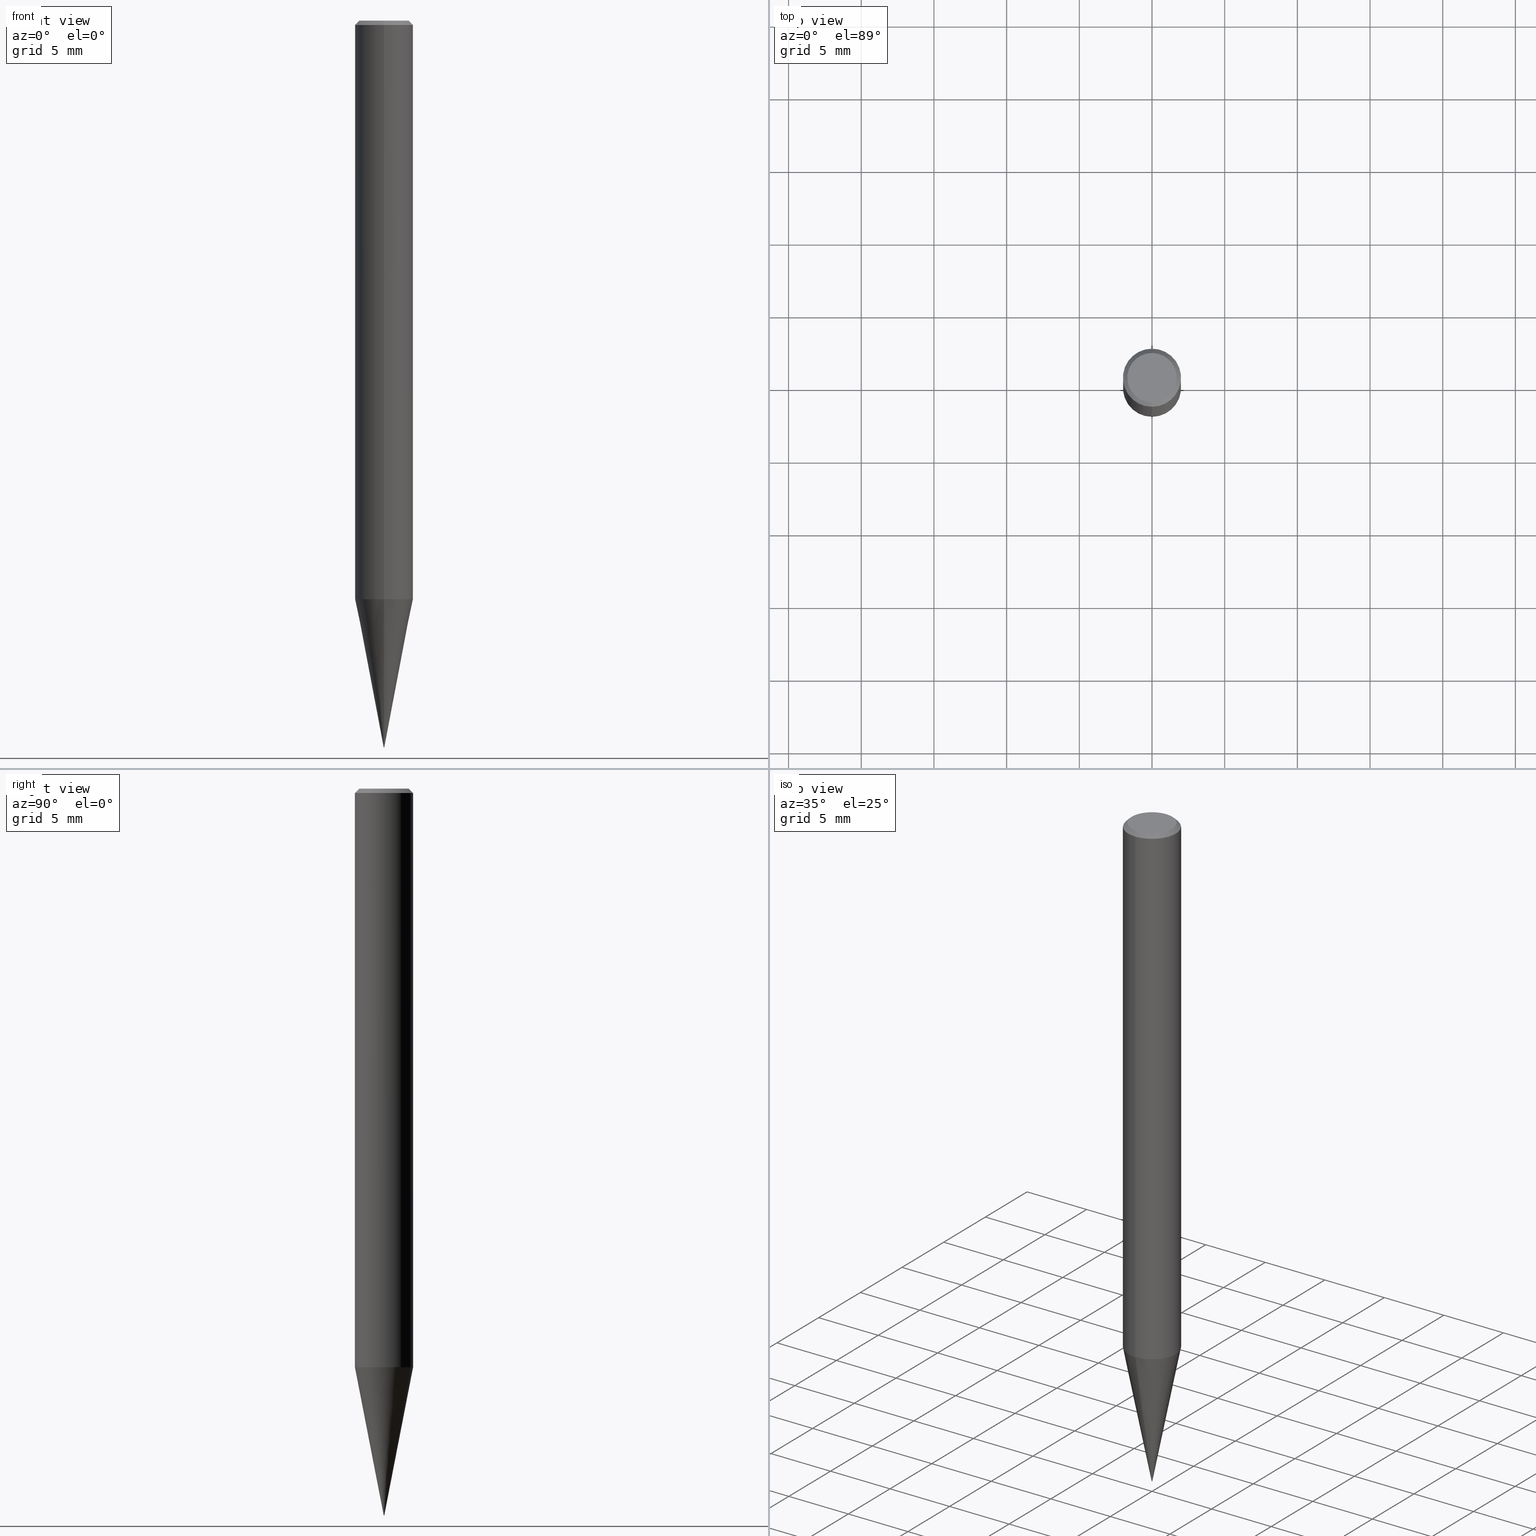
[diagram: canonical four-view strip — front | top / right | iso, engineering-drawing reading convention]
A machine part, canonical four-view strip (front | top / right | iso — engineering-drawing reading convention). The complete STEP part file that produces these views, byte-faithful:
ISO-10303-21;
HEADER;
FILE_DESCRIPTION(('no description'),'unknown implementation level');
FILE_NAME('HSB20006-0006-Huellk.stp','  ',('CIMSOURCE GmbH'),('CADClick - KiM GmbH - www.kimweb.de'),'unknown preprocess','ACIS','unknown authorization');
FILE_SCHEMA(('automotive_design'));
ENDSEC;
DATA;
#1=MECHANICAL_DESIGN_GEOMETRIC_PRESENTATION_REPRESENTATION(' ',(#14,#15,#16,#17,#18,#19,#20,#21,#22,#23,#24,#25,#26,#27,#28,#29,#30,#31,#32,#33,#34,#35,#36,#37,#38,#39,#40,#41,#42,#43,#44,#45,#46,#47,#48,#49,#50,#51,#52,#53,#54,#55,#56,#57,#58,#59,#60,#61,#62,#63,#64,#65,#66),#10);
#2=PRODUCT_DEFINITION_CONTEXT('',#67,'design');
#3=APPLICATION_PROTOCOL_DEFINITION('INTERNATIONAL STANDARD','automotive_design',1994,#67);
#4=PRODUCT_CATEGORY_RELATIONSHIP('NONE','NONE',#68,#69);
#5=SHAPE_DEFINITION_REPRESENTATION(#70,#71);
#6=PRODUCT_DEFINITION_CONTEXT('',#72,'design');
#7=APPLICATION_PROTOCOL_DEFINITION('INTERNATIONAL STANDARD','automotive_design',1994,#72);
#8=PRODUCT_CATEGORY_RELATIONSHIP('NONE','NONE',#73,#74);
#9=SHAPE_DEFINITION_REPRESENTATION(#75,#76);
#10= (GEOMETRIC_REPRESENTATION_CONTEXT(3)GLOBAL_UNCERTAINTY_ASSIGNED_CONTEXT((#79))GLOBAL_UNIT_ASSIGNED_CONTEXT((#81,#82,#83))REPRESENTATION_CONTEXT('NONE','WORKSPACE'));
#14=STYLED_ITEM('',(#85),#86);
#15=STYLED_ITEM('',(#87),#88);
#16=STYLED_ITEM('',(#89),#90);
#17=STYLED_ITEM('',(#91),#92);
#18=STYLED_ITEM('',(#93),#94);
#19=STYLED_ITEM('',(#95),#96);
#20=STYLED_ITEM('',(#97),#98);
#21=STYLED_ITEM('',(#99),#100);
#22=STYLED_ITEM('',(#101),#102);
#23=STYLED_ITEM('',(#103),#104);
#24=STYLED_ITEM('',(#105),#106);
#25=STYLED_ITEM('',(#107),#108);
#26=STYLED_ITEM('',(#109),#110);
#27=STYLED_ITEM('',(#111),#112);
#28=STYLED_ITEM('',(#113),#114);
#29=STYLED_ITEM('',(#115),#116);
#30=STYLED_ITEM('',(#117),#118);
#31=STYLED_ITEM('',(#119),#120);
#32=STYLED_ITEM('',(#121),#122);
#33=STYLED_ITEM('',(#123),#124);
#34=STYLED_ITEM('',(#125),#126);
#35=STYLED_ITEM('',(#127),#128);
#36=STYLED_ITEM('',(#129),#130);
#37=STYLED_ITEM('',(#131),#132);
#38=STYLED_ITEM('',(#133),#134);
#39=STYLED_ITEM('',(#135),#136);
#40=STYLED_ITEM('',(#137),#138);
#41=STYLED_ITEM('',(#139),#140);
#42=STYLED_ITEM('',(#141),#142);
#43=STYLED_ITEM('',(#143),#144);
#44=STYLED_ITEM('',(#145),#146);
#45=STYLED_ITEM('',(#147),#148);
#46=STYLED_ITEM('',(#149),#150);
#47=STYLED_ITEM('',(#151),#152);
#48=STYLED_ITEM('',(#153),#154);
#49=STYLED_ITEM('',(#155),#156);
#50=STYLED_ITEM('',(#157),#158);
#51=STYLED_ITEM('',(#159),#160);
#52=STYLED_ITEM('',(#161),#162);
#53=STYLED_ITEM('',(#163),#164);
#54=STYLED_ITEM('',(#165),#166);
#55=STYLED_ITEM('',(#167),#168);
#56=STYLED_ITEM('',(#169),#170);
#57=STYLED_ITEM('',(#171),#172);
#58=STYLED_ITEM('',(#173),#174);
#59=STYLED_ITEM('',(#175),#176);
#60=STYLED_ITEM('',(#177),#178);
#61=STYLED_ITEM('',(#179),#180);
#62=STYLED_ITEM('',(#181),#182);
#63=STYLED_ITEM('',(#183),#184);
#64=STYLED_ITEM('',(#185),#186);
#65=STYLED_ITEM('',(#187),#188);
#66=STYLED_ITEM('',(#189),#190);
#67=APPLICATION_CONTEXT(' ');
#68=PRODUCT_CATEGORY('part','NONE');
#69=PRODUCT_RELATED_PRODUCT_CATEGORY('detail',' ',(#191));
#70=PRODUCT_DEFINITION_SHAPE('NONE','NONE',#192);
#71=ADVANCED_BREP_SHAPE_REPRESENTATION('1',(#160,#193),#10);
#72=APPLICATION_CONTEXT(' ');
#73=PRODUCT_CATEGORY('part','NONE');
#74=PRODUCT_RELATED_PRODUCT_CATEGORY('detail',' ',(#194));
#75=PRODUCT_DEFINITION_SHAPE('NONE','NONE',#195);
#76=ADVANCED_BREP_SHAPE_REPRESENTATION('2',(#178,#196),#10);
#79=UNCERTAINTY_MEASURE_WITH_UNIT(LENGTH_MEASURE(1.0E-006),#81,'','');
#81= (CONVERSION_BASED_UNIT('MILLIMETRE',#199)LENGTH_UNIT()NAMED_UNIT(#202));
#82= (NAMED_UNIT(#204)PLANE_ANGLE_UNIT()SI_UNIT($,.RADIAN.));
#83= (NAMED_UNIT(#204)SOLID_ANGLE_UNIT()SI_UNIT($,.STERADIAN.));
#85=PRESENTATION_STYLE_ASSIGNMENT((#210));
#86=EDGE_CURVE('',#154,#134,#211,.T.);
#87=PRESENTATION_STYLE_ASSIGNMENT((#212));
#88=EDGE_CURVE('',#114,#108,#213,.T.);
#89=PRESENTATION_STYLE_ASSIGNMENT((#214));
#90=EDGE_CURVE('',#154,#108,#215,.T.);
#91=PRESENTATION_STYLE_ASSIGNMENT((#216));
#92=EDGE_CURVE('',#172,#120,#217,.T.);
#93=PRESENTATION_STYLE_ASSIGNMENT((#218));
#94=EDGE_CURVE('',#180,#170,#219,.T.);
#95=PRESENTATION_STYLE_ASSIGNMENT((#220));
#96=ADVANCED_FACE('',(#221,#222),#223,.T.);
#97=PRESENTATION_STYLE_ASSIGNMENT((#224));
#98=ADVANCED_FACE('',(#225),#226,.T.);
#99=PRESENTATION_STYLE_ASSIGNMENT((#227));
#100=EDGE_CURVE('',#108,#176,#228,.T.);
#101=PRESENTATION_STYLE_ASSIGNMENT((#229));
#102=EDGE_CURVE('',#110,#146,#230,.T.);
#103=PRESENTATION_STYLE_ASSIGNMENT((#231));
#104=VERTEX_POINT('',#232);
#105=PRESENTATION_STYLE_ASSIGNMENT((#233));
#106=EDGE_CURVE('',#138,#114,#234,.T.);
#107=PRESENTATION_STYLE_ASSIGNMENT((#235));
#108=VERTEX_POINT('',#236);
#109=PRESENTATION_STYLE_ASSIGNMENT((#237));
#110=VERTEX_POINT('',#238);
#111=PRESENTATION_STYLE_ASSIGNMENT((#239));
#112=EDGE_CURVE('',#146,#110,#240,.T.);
#113=PRESENTATION_STYLE_ASSIGNMENT((#241));
#114=VERTEX_POINT('',#242);
#115=PRESENTATION_STYLE_ASSIGNMENT((#243));
#116=EDGE_CURVE('',#134,#154,#244,.T.);
#117=PRESENTATION_STYLE_ASSIGNMENT((#245));
#118=EDGE_CURVE('',#138,#176,#246,.T.);
#119=PRESENTATION_STYLE_ASSIGNMENT((#247));
#120=VERTEX_POINT('',#248);
#121=PRESENTATION_STYLE_ASSIGNMENT((#249));
#122=ADVANCED_FACE('',(#250),#251,.T.);
#123=PRESENTATION_STYLE_ASSIGNMENT((#252));
#124=EDGE_CURVE('',#120,#166,#253,.T.);
#125=PRESENTATION_STYLE_ASSIGNMENT((#254));
#126=ADVANCED_FACE('',(#255),#256,.T.);
#127=PRESENTATION_STYLE_ASSIGNMENT((#257));
#128=EDGE_CURVE('',#110,#146,#258,.T.);
#129=PRESENTATION_STYLE_ASSIGNMENT((#259));
#130=ADVANCED_FACE('',(#260),#261,.T.);
#131=PRESENTATION_STYLE_ASSIGNMENT((#262));
#132=ADVANCED_FACE('',(#263),#264,.T.);
#133=PRESENTATION_STYLE_ASSIGNMENT((#265));
#134=VERTEX_POINT('',#266);
#135=PRESENTATION_STYLE_ASSIGNMENT((#267));
#136=EDGE_CURVE('',#180,#146,#268,.T.);
#137=PRESENTATION_STYLE_ASSIGNMENT((#269));
#138=VERTEX_POINT('',#270);
#139=PRESENTATION_STYLE_ASSIGNMENT((#271));
#140=EDGE_CURVE('',#110,#170,#272,.T.);
#141=PRESENTATION_STYLE_ASSIGNMENT((#273));
#142=ADVANCED_FACE('',(#274),#275,.T.);
#143=PRESENTATION_STYLE_ASSIGNMENT((#276));
#144=EDGE_CURVE('',#114,#134,#277,.T.);
#145=PRESENTATION_STYLE_ASSIGNMENT((#278));
#146=VERTEX_POINT('',#279);
#147=PRESENTATION_STYLE_ASSIGNMENT((#280));
#148=ADVANCED_FACE('',(#281),#282,.T.);
#149=PRESENTATION_STYLE_ASSIGNMENT((#283));
#150=ADVANCED_FACE('',(#284),#285,.T.);
#151=PRESENTATION_STYLE_ASSIGNMENT((#286));
#152=ADVANCED_FACE('',(#287),#288,.T.);
#153=PRESENTATION_STYLE_ASSIGNMENT((#289));
#154=VERTEX_POINT('',#290);
#155=PRESENTATION_STYLE_ASSIGNMENT((#291));
#156=ADVANCED_FACE('',(#292),#293,.T.);
#157=PRESENTATION_STYLE_ASSIGNMENT((#294));
#158=EDGE_CURVE('',#104,#172,#295,.T.);
#159=PRESENTATION_STYLE_ASSIGNMENT((#296));
#160=MANIFOLD_SOLID_BREP('1',#297);
#161=PRESENTATION_STYLE_ASSIGNMENT((#298));
#162=EDGE_CURVE('',#108,#114,#299,.T.);
#163=PRESENTATION_STYLE_ASSIGNMENT((#300));
#164=ADVANCED_FACE('',(#301),#302,.T.);
#165=PRESENTATION_STYLE_ASSIGNMENT((#303));
#166=VERTEX_POINT('',#304);
#167=PRESENTATION_STYLE_ASSIGNMENT((#305));
#168=ADVANCED_FACE('',(#306),#307,.T.);
#169=PRESENTATION_STYLE_ASSIGNMENT((#308));
#170=VERTEX_POINT('',#309);
#171=PRESENTATION_STYLE_ASSIGNMENT((#310));
#172=VERTEX_POINT('',#311);
#173=PRESENTATION_STYLE_ASSIGNMENT((#312));
#174=EDGE_CURVE('',#176,#138,#313,.T.);
#175=PRESENTATION_STYLE_ASSIGNMENT((#314));
#176=VERTEX_POINT('',#315);
#177=PRESENTATION_STYLE_ASSIGNMENT((#316));
#178=MANIFOLD_SOLID_BREP('2',#317);
#179=PRESENTATION_STYLE_ASSIGNMENT((#318));
#180=VERTEX_POINT('',#319);
#181=PRESENTATION_STYLE_ASSIGNMENT((#320));
#182=EDGE_CURVE('',#172,#104,#321,.T.);
#183=PRESENTATION_STYLE_ASSIGNMENT((#322));
#184=ADVANCED_FACE('',(#323),#324,.T.);
#185=PRESENTATION_STYLE_ASSIGNMENT((#325));
#186=EDGE_CURVE('',#166,#120,#326,.T.);
#187=PRESENTATION_STYLE_ASSIGNMENT((#327));
#188=EDGE_CURVE('',#170,#180,#328,.T.);
#189=PRESENTATION_STYLE_ASSIGNMENT((#329));
#190=EDGE_CURVE('',#166,#104,#330,.T.);
#191=PRODUCT('1','1','PART-1-DESC',(#331));
#192=PRODUCT_DEFINITION('NONE','NONE',#332,#2);
#193=AXIS2_PLACEMENT_3D('',#333,#334,#335);
#194=PRODUCT('2','2','PART-2-DESC',(#336));
#195=PRODUCT_DEFINITION('NONE','NONE',#337,#6);
#196=AXIS2_PLACEMENT_3D('',#338,#339,#340);
#199=LENGTH_MEASURE_WITH_UNIT(LENGTH_MEASURE(1.0),#341);
#202=DIMENSIONAL_EXPONENTS(1.0,0.0,0.0,0.0,0.0,0.0,0.0);
#204=DIMENSIONAL_EXPONENTS(0.0,0.0,0.0,0.0,0.0,0.0,0.0);
#210=CURVE_STYLE('',#342,POSITIVE_LENGTH_MEASURE(1.0E-006),#343);
#211=CIRCLE('',#344,1.7);
#212=CURVE_STYLE('',#345,POSITIVE_LENGTH_MEASURE(1.0E-006),#346);
#213=CIRCLE('',#347,2.0);
#214=CURVE_STYLE('',#348,POSITIVE_LENGTH_MEASURE(1.0E-006),#349);
#215=LINE('',#350,#351);
#216=CURVE_STYLE('',#352,POSITIVE_LENGTH_MEASURE(1.0E-006),#353);
#217=LINE('',#354,#355);
#218=CURVE_STYLE('',#356,POSITIVE_LENGTH_MEASURE(1.0E-006),#357);
#219=CIRCLE('',#358,0.0299);
#220=SURFACE_STYLE_USAGE(.BOTH.,#359);
#221=FACE_OUTER_BOUND('',#360,.T.);
#222=FACE_BOUND('',#361,.T.);
#223=PLANE('',#362);
#224=SURFACE_STYLE_USAGE(.BOTH.,#363);
#225=FACE_OUTER_BOUND('',#364,.T.);
#226=PLANE('',#365);
#227=CURVE_STYLE('',#366,POSITIVE_LENGTH_MEASURE(1.0E-006),#367);
#228=LINE('',#368,#369);
#229=CURVE_STYLE('',#370,POSITIVE_LENGTH_MEASURE(1.0E-006),#371);
#230=CIRCLE('',#372,0.03);
#231=POINT_STYLE(' ',#373,POSITIVE_LENGTH_MEASURE(1.0E-006),#374);
#232=CARTESIAN_POINT('',(0.0,0.02995,-49.94));
#233=CURVE_STYLE('',#375,POSITIVE_LENGTH_MEASURE(1.0E-006),#376);
#234=LINE('',#377,#378);
#235=POINT_STYLE(' ',#379,POSITIVE_LENGTH_MEASURE(1.0E-006),#380);
#236=CARTESIAN_POINT('',(0.0,2.0,-0.299999999999997));
#237=POINT_STYLE(' ',#381,POSITIVE_LENGTH_MEASURE(1.0E-006),#382);
#238=CARTESIAN_POINT('',(3.67381906146713E-018,-0.03,-49.97));
#239=CURVE_STYLE('',#383,POSITIVE_LENGTH_MEASURE(1.0E-006),#384);
#240=CIRCLE('',#385,0.03);
#241=POINT_STYLE(' ',#386,POSITIVE_LENGTH_MEASURE(1.0E-006),#387);
#242=CARTESIAN_POINT('',(2.44921270764475E-016,-2.0,-0.299999999999997));
#243=CURVE_STYLE('',#388,POSITIVE_LENGTH_MEASURE(1.0E-006),#389);
#244=CIRCLE('',#390,1.7);
#245=CURVE_STYLE('',#391,POSITIVE_LENGTH_MEASURE(1.0E-006),#392);
#246=CIRCLE('',#393,2.0);
#247=POINT_STYLE(' ',#394,POSITIVE_LENGTH_MEASURE(1.0E-006),#395);
#248=CARTESIAN_POINT('',(2.44915147732706E-016,-1.99995,-39.805));
#249=SURFACE_STYLE_USAGE(.BOTH.,#396);
#250=FACE_OUTER_BOUND('',#397,.T.);
#251=CONICAL_SURFACE('',#398,1.01495,0.191981993208078);
#252=CURVE_STYLE('',#399,POSITIVE_LENGTH_MEASURE(1.0E-006),#400);
#253=CIRCLE('',#401,1.99995);
#254=SURFACE_STYLE_USAGE(.BOTH.,#402);
#255=FACE_OUTER_BOUND('',#403,.T.);
#256=PLANE('',#404);
#257=CURVE_STYLE('',#405,POSITIVE_LENGTH_MEASURE(1.0E-006),#406);
#258=CIRCLE('',#407,0.03);
#259=SURFACE_STYLE_USAGE(.BOTH.,#408);
#260=FACE_OUTER_BOUND('',#409,.T.);
#261=CONICAL_SURFACE('',#410,1.85,0.785398163397453);
#262=SURFACE_STYLE_USAGE(.BOTH.,#411);
#263=FACE_OUTER_BOUND('',#412,.T.);
#264=SPHERICAL_SURFACE('',#413,0.03);
#265=POINT_STYLE(' ',#414,POSITIVE_LENGTH_MEASURE(1.0E-006),#415);
#266=CARTESIAN_POINT('',(2.08183080149804E-016,-1.7,0.0));
#267=CURVE_STYLE('',#416,POSITIVE_LENGTH_MEASURE(1.0E-006),#417);
#268=LINE('',#418,#419);
#269=POINT_STYLE(' ',#420,POSITIVE_LENGTH_MEASURE(1.0E-006),#421);
#270=CARTESIAN_POINT('',(2.44921270764475E-016,-2.0,-39.805));
#271=CURVE_STYLE('',#422,POSITIVE_LENGTH_MEASURE(1.0E-006),#423);
#272=LINE('',#424,#425);
#273=SURFACE_STYLE_USAGE(.BOTH.,#426);
#274=FACE_OUTER_BOUND('',#427,.T.);
#275=CYLINDRICAL_SURFACE('',#428,2.0);
#276=CURVE_STYLE('',#429,POSITIVE_LENGTH_MEASURE(1.0E-006),#430);
#277=LINE('',#431,#432);
#278=POINT_STYLE(' ',#433,POSITIVE_LENGTH_MEASURE(1.0E-006),#434);
#279=CARTESIAN_POINT('',(0.0,0.03,-49.97));
#280=SURFACE_STYLE_USAGE(.BOTH.,#435);
#281=FACE_OUTER_BOUND('',#436,.T.);
#282=CONICAL_SURFACE('',#437,0.02995,0.00333332098773661);
#283=SURFACE_STYLE_USAGE(.BOTH.,#438);
#284=FACE_OUTER_BOUND('',#439,.T.);
#285=CONICAL_SURFACE('',#440,1.85,0.785398163397453);
#286=SURFACE_STYLE_USAGE(.BOTH.,#441);
#287=FACE_OUTER_BOUND('',#442,.T.);
#288=CONICAL_SURFACE('',#443,1.01495,0.191981993208078);
#289=POINT_STYLE(' ',#444,POSITIVE_LENGTH_MEASURE(1.0E-006),#445);
#290=CARTESIAN_POINT('',(0.0,1.7,0.0));
#291=SURFACE_STYLE_USAGE(.BOTH.,#446);
#292=FACE_OUTER_BOUND('',#447,.T.);
#293=SPHERICAL_SURFACE('',#448,0.03);
#294=CURVE_STYLE('',#449,POSITIVE_LENGTH_MEASURE(1.0E-006),#450);
#295=CIRCLE('',#451,0.02995);
#296=SURFACE_STYLE_USAGE(.BOTH.,#452);
#297=CLOSED_SHELL('',(#152,#142,#130,#96,#126,#150,#164,#122,#168));
#298=CURVE_STYLE('',#453,POSITIVE_LENGTH_MEASURE(1.0E-006),#454);
#299=CIRCLE('',#455,2.0);
#300=SURFACE_STYLE_USAGE(.BOTH.,#456);
#301=FACE_OUTER_BOUND('',#457,.T.);
#302=CYLINDRICAL_SURFACE('',#458,2.0);
#303=POINT_STYLE(' ',#459,POSITIVE_LENGTH_MEASURE(1.0E-006),#460);
#304=CARTESIAN_POINT('',(0.0,1.99995,-39.805));
#305=SURFACE_STYLE_USAGE(.BOTH.,#461);
#306=FACE_OUTER_BOUND('',#462,.T.);
#307=PLANE('',#463);
#308=POINT_STYLE(' ',#464,POSITIVE_LENGTH_MEASURE(1.0E-006),#465);
#309=CARTESIAN_POINT('',(3.66157299792891E-018,-0.0299,-49.94));
#310=POINT_STYLE(' ',#466,POSITIVE_LENGTH_MEASURE(1.0E-006),#467);
#311=CARTESIAN_POINT('',(3.667696029698E-018,-0.02995,-49.94));
#312=CURVE_STYLE('',#468,POSITIVE_LENGTH_MEASURE(1.0E-006),#469);
#313=CIRCLE('',#470,2.0);
#314=POINT_STYLE(' ',#471,POSITIVE_LENGTH_MEASURE(1.0E-006),#472);
#315=CARTESIAN_POINT('',(0.0,2.0,-39.805));
#316=SURFACE_STYLE_USAGE(.BOTH.,#473);
#317=CLOSED_SHELL('',(#156,#184,#98,#148,#132));
#318=POINT_STYLE(' ',#474,POSITIVE_LENGTH_MEASURE(1.0E-006),#475);
#319=CARTESIAN_POINT('',(0.0,0.0299,-49.94));
#320=CURVE_STYLE('',#476,POSITIVE_LENGTH_MEASURE(1.0E-006),#477);
#321=CIRCLE('',#478,0.02995);
#322=SURFACE_STYLE_USAGE(.BOTH.,#479);
#323=FACE_OUTER_BOUND('',#480,.T.);
#324=CONICAL_SURFACE('',#481,0.02995,0.00333332098773661);
#325=CURVE_STYLE('',#482,POSITIVE_LENGTH_MEASURE(1.0E-006),#483);
#326=CIRCLE('',#484,1.99995);
#327=CURVE_STYLE('',#485,POSITIVE_LENGTH_MEASURE(1.0E-006),#486);
#328=CIRCLE('',#487,0.0299);
#329=CURVE_STYLE('',#488,POSITIVE_LENGTH_MEASURE(1.0E-006),#489);
#330=LINE('',#490,#491);
#331=PRODUCT_CONTEXT('',#67,'mechanical');
#332=PRODUCT_DEFINITION_FORMATION_WITH_SPECIFIED_SOURCE(' ','NONE',#191,.NOT_KNOWN.);
#333=CARTESIAN_POINT('',(0.0,0.0,0.0));
#334=DIRECTION('',(0.0,0.0,1.0));
#335=DIRECTION('',(1.0,0.0,0.0));
#336=PRODUCT_CONTEXT('',#72,'mechanical');
#337=PRODUCT_DEFINITION_FORMATION_WITH_SPECIFIED_SOURCE(' ','NONE',#194,.NOT_KNOWN.);
#338=CARTESIAN_POINT('',(0.0,0.0,0.0));
#339=DIRECTION('',(0.0,0.0,1.0));
#340=DIRECTION('',(1.0,0.0,0.0));
#341= (NAMED_UNIT(#202)LENGTH_UNIT()SI_UNIT(.MILLI.,.METRE.));
#342=DRAUGHTING_PRE_DEFINED_CURVE_FONT('continuous');
#343=COLOUR_RGB('',0.498039215803146,0.498039215803146,0.498039215803146);
#344=AXIS2_PLACEMENT_3D('',#493,#494,#495);
#345=DRAUGHTING_PRE_DEFINED_CURVE_FONT('continuous');
#346=COLOUR_RGB('',0.498039215803146,0.498039215803146,0.498039215803146);
#347=AXIS2_PLACEMENT_3D('',#496,#497,#498);
#348=DRAUGHTING_PRE_DEFINED_CURVE_FONT('continuous');
#349=COLOUR_RGB('',0.498039215803146,0.498039215803146,0.498039215803146);
#350=CARTESIAN_POINT('',(-2.2655217545714E-016,1.85,-0.149999999999999));
#351=VECTOR('',#499,1.0);
#352=DRAUGHTING_PRE_DEFINED_CURVE_FONT('continuous');
#353=COLOUR_RGB('',0.498039215803146,0.498039215803146,0.498039215803146);
#354=CARTESIAN_POINT('',(1.24291421881202E-016,-1.01495,-44.8725));
#355=VECTOR('',#500,1.0);
#356=DRAUGHTING_PRE_DEFINED_CURVE_FONT('continuous');
#357=COLOUR_RGB('',0.800000011920929,0.800000011920929,0.800000011920929);
#358=AXIS2_PLACEMENT_3D('',#501,#502,#503);
#359=SURFACE_SIDE_STYLE('',(#504));
#360=EDGE_LOOP('',(#505,#506));
#361=EDGE_LOOP('',(#507,#508));
#362=AXIS2_PLACEMENT_3D('',#509,#510,#511);
#363=SURFACE_SIDE_STYLE('',(#512));
#364=EDGE_LOOP('',(#513,#514));
#365=AXIS2_PLACEMENT_3D('',#515,#516,#517);
#366=DRAUGHTING_PRE_DEFINED_CURVE_FONT('continuous');
#367=COLOUR_RGB('',0.498039215803146,0.498039215803146,0.498039215803146);
#368=CARTESIAN_POINT('',(-2.44921270764475E-016,2.0,-20.0525));
#369=VECTOR('',#518,1.0);
#370=DRAUGHTING_PRE_DEFINED_CURVE_FONT('continuous');
#371=COLOUR_RGB('',0.800000011920929,0.800000011920929,0.800000011920929);
#372=AXIS2_PLACEMENT_3D('',#519,#520,#521);
#373=PRE_DEFINED_MARKER('');
#374=COLOUR_RGB('',0.498039215803146,0.498039215803146,0.498039215803146);
#375=DRAUGHTING_PRE_DEFINED_CURVE_FONT('continuous');
#376=COLOUR_RGB('',0.498039215803146,0.498039215803146,0.498039215803146);
#377=CARTESIAN_POINT('',(2.44921270764475E-016,-2.0,-20.0525));
#378=VECTOR('',#522,1.0);
#379=PRE_DEFINED_MARKER('');
#380=COLOUR_RGB('',0.498039215803146,0.498039215803146,0.498039215803146);
#381=PRE_DEFINED_MARKER('');
#382=COLOUR_RGB('',0.800000011920929,0.800000011920929,0.800000011920929);
#383=DRAUGHTING_PRE_DEFINED_CURVE_FONT('continuous');
#384=COLOUR_RGB('',0.800000011920929,0.800000011920929,0.800000011920929);
#385=AXIS2_PLACEMENT_3D('',#523,#524,#525);
#386=PRE_DEFINED_MARKER('');
#387=COLOUR_RGB('',0.498039215803146,0.498039215803146,0.498039215803146);
#388=DRAUGHTING_PRE_DEFINED_CURVE_FONT('continuous');
#389=COLOUR_RGB('',0.498039215803146,0.498039215803146,0.498039215803146);
#390=AXIS2_PLACEMENT_3D('',#526,#527,#528);
#391=DRAUGHTING_PRE_DEFINED_CURVE_FONT('continuous');
#392=COLOUR_RGB('',0.498039215803146,0.498039215803146,0.498039215803146);
#393=AXIS2_PLACEMENT_3D('',#529,#530,#531);
#394=PRE_DEFINED_MARKER('');
#395=COLOUR_RGB('',0.498039215803146,0.498039215803146,0.498039215803146);
#396=SURFACE_SIDE_STYLE('',(#532));
#397=EDGE_LOOP('',(#533,#534,#535,#536));
#398=AXIS2_PLACEMENT_3D('',#537,#538,#539);
#399=DRAUGHTING_PRE_DEFINED_CURVE_FONT('continuous');
#400=COLOUR_RGB('',0.498039215803146,0.498039215803146,0.498039215803146);
#401=AXIS2_PLACEMENT_3D('',#540,#541,#542);
#402=SURFACE_SIDE_STYLE('',(#543));
#403=EDGE_LOOP('',(#544,#545));
#404=AXIS2_PLACEMENT_3D('',#546,#547,#548);
#405=DRAUGHTING_PRE_DEFINED_CURVE_FONT('continuous');
#406=COLOUR_RGB('',0.800000011920929,0.800000011920929,0.800000011920929);
#407=AXIS2_PLACEMENT_3D('',#549,#550,#551);
#408=SURFACE_SIDE_STYLE('',(#552));
#409=EDGE_LOOP('',(#553,#554,#555,#556));
#410=AXIS2_PLACEMENT_3D('',#557,#558,#559);
#411=SURFACE_SIDE_STYLE('',(#560));
#412=EDGE_LOOP('',(#561,#562));
#413=AXIS2_PLACEMENT_3D('',#563,#564,#565);
#414=PRE_DEFINED_MARKER('');
#415=COLOUR_RGB('',0.498039215803146,0.498039215803146,0.498039215803146);
#416=DRAUGHTING_PRE_DEFINED_CURVE_FONT('continuous');
#417=COLOUR_RGB('',0.800000011920929,0.800000011920929,0.800000011920929);
#418=CARTESIAN_POINT('',(-3.66769602969802E-018,0.02995,-49.955));
#419=VECTOR('',#566,1.0);
#420=PRE_DEFINED_MARKER('');
#421=COLOUR_RGB('',0.498039215803146,0.498039215803146,0.498039215803146);
#422=DRAUGHTING_PRE_DEFINED_CURVE_FONT('continuous');
#423=COLOUR_RGB('',0.800000011920929,0.800000011920929,0.800000011920929);
#424=CARTESIAN_POINT('',(3.66769602969802E-018,-0.02995,-49.955));
#425=VECTOR('',#567,1.0);
#426=SURFACE_SIDE_STYLE('',(#568));
#427=EDGE_LOOP('',(#569,#570,#571,#572));
#428=AXIS2_PLACEMENT_3D('',#573,#574,#575);
#429=DRAUGHTING_PRE_DEFINED_CURVE_FONT('continuous');
#430=COLOUR_RGB('',0.498039215803146,0.498039215803146,0.498039215803146);
#431=CARTESIAN_POINT('',(2.2655217545714E-016,-1.85,-0.149999999999999));
#432=VECTOR('',#576,1.0);
#433=PRE_DEFINED_MARKER('');
#434=COLOUR_RGB('',0.800000011920929,0.800000011920929,0.800000011920929);
#435=SURFACE_SIDE_STYLE('',(#577));
#436=EDGE_LOOP('',(#578,#579,#580,#581));
#437=AXIS2_PLACEMENT_3D('',#582,#583,#584);
#438=SURFACE_SIDE_STYLE('',(#585));
#439=EDGE_LOOP('',(#586,#587,#588,#589));
#440=AXIS2_PLACEMENT_3D('',#590,#591,#592);
#441=SURFACE_SIDE_STYLE('',(#593));
#442=EDGE_LOOP('',(#594,#595,#596,#597));
#443=AXIS2_PLACEMENT_3D('',#598,#599,#600);
#444=PRE_DEFINED_MARKER('');
#445=COLOUR_RGB('',0.498039215803146,0.498039215803146,0.498039215803146);
#446=SURFACE_SIDE_STYLE('',(#601));
#447=EDGE_LOOP('',(#602,#603));
#448=AXIS2_PLACEMENT_3D('',#604,#605,#606);
#449=DRAUGHTING_PRE_DEFINED_CURVE_FONT('continuous');
#450=COLOUR_RGB('',0.498039215803146,0.498039215803146,0.498039215803146);
#451=AXIS2_PLACEMENT_3D('',#607,#608,#609);
#452=SURFACE_SIDE_STYLE('',(#610));
#453=DRAUGHTING_PRE_DEFINED_CURVE_FONT('continuous');
#454=COLOUR_RGB('',0.498039215803146,0.498039215803146,0.498039215803146);
#455=AXIS2_PLACEMENT_3D('',#611,#612,#613);
#456=SURFACE_SIDE_STYLE('',(#614));
#457=EDGE_LOOP('',(#615,#616,#617,#618));
#458=AXIS2_PLACEMENT_3D('',#619,#620,#621);
#459=PRE_DEFINED_MARKER('');
#460=COLOUR_RGB('',0.498039215803146,0.498039215803146,0.498039215803146);
#461=SURFACE_SIDE_STYLE('',(#622));
#462=EDGE_LOOP('',(#623,#624));
#463=AXIS2_PLACEMENT_3D('',#625,#626,#627);
#464=PRE_DEFINED_MARKER('');
#465=COLOUR_RGB('',0.800000011920929,0.800000011920929,0.800000011920929);
#466=PRE_DEFINED_MARKER('');
#467=COLOUR_RGB('',0.498039215803146,0.498039215803146,0.498039215803146);
#468=DRAUGHTING_PRE_DEFINED_CURVE_FONT('continuous');
#469=COLOUR_RGB('',0.498039215803146,0.498039215803146,0.498039215803146);
#470=AXIS2_PLACEMENT_3D('',#628,#629,#630);
#471=PRE_DEFINED_MARKER('');
#472=COLOUR_RGB('',0.498039215803146,0.498039215803146,0.498039215803146);
#473=SURFACE_SIDE_STYLE('',(#631));
#474=PRE_DEFINED_MARKER('');
#475=COLOUR_RGB('',0.800000011920929,0.800000011920929,0.800000011920929);
#476=DRAUGHTING_PRE_DEFINED_CURVE_FONT('continuous');
#477=COLOUR_RGB('',0.498039215803146,0.498039215803146,0.498039215803146);
#478=AXIS2_PLACEMENT_3D('',#632,#633,#634);
#479=SURFACE_SIDE_STYLE('',(#635));
#480=EDGE_LOOP('',(#636,#637,#638,#639));
#481=AXIS2_PLACEMENT_3D('',#640,#641,#642);
#482=DRAUGHTING_PRE_DEFINED_CURVE_FONT('continuous');
#483=COLOUR_RGB('',0.498039215803146,0.498039215803146,0.498039215803146);
#484=AXIS2_PLACEMENT_3D('',#643,#644,#645);
#485=DRAUGHTING_PRE_DEFINED_CURVE_FONT('continuous');
#486=COLOUR_RGB('',0.800000011920929,0.800000011920929,0.800000011920929);
#487=AXIS2_PLACEMENT_3D('',#646,#647,#648);
#488=DRAUGHTING_PRE_DEFINED_CURVE_FONT('continuous');
#489=COLOUR_RGB('',0.498039215803146,0.498039215803146,0.498039215803146);
#490=CARTESIAN_POINT('',(-1.24291421881202E-016,1.01495,-44.8725));
#491=VECTOR('',#649,1.0);
#493=CARTESIAN_POINT('',(0.0,0.0,0.0));
#494=DIRECTION('',(0.0,0.0,-1.0));
#495=DIRECTION('',(0.0,1.0,0.0));
#496=CARTESIAN_POINT('',(0.0,0.0,-0.299999999999997));
#497=DIRECTION('',(0.0,0.0,-1.0));
#498=DIRECTION('',(0.0,1.0,0.0));
#499=DIRECTION('',(-8.6592745707194E-017,0.707106781186551,-0.707106781186544));
#500=DIRECTION('',(2.33660829788375E-017,-0.190804848479715,0.981627989513661));
#501=CARTESIAN_POINT('',(0.0,0.0,-49.94));
#502=DIRECTION('',(0.0,0.0,-1.0));
#503=DIRECTION('',(0.0,1.0,0.0));
#504=SURFACE_STYLE_FILL_AREA(#650);
#505=ORIENTED_EDGE('',*,*,#174,.T.);
#506=ORIENTED_EDGE('',*,*,#118,.T.);
#507=ORIENTED_EDGE('',*,*,#186,.F.);
#508=ORIENTED_EDGE('',*,*,#124,.F.);
#509=CARTESIAN_POINT('',(0.0,1.0,-39.805));
#510=DIRECTION('',(0.0,0.0,-1.0));
#511=DIRECTION('',(0.0,1.0,0.0));
#512=SURFACE_STYLE_FILL_AREA(#651);
#513=ORIENTED_EDGE('',*,*,#94,.F.);
#514=ORIENTED_EDGE('',*,*,#188,.F.);
#515=CARTESIAN_POINT('',(0.0,0.01495,-49.94));
#516=DIRECTION('',(-0.0,0.0,1.0));
#517=DIRECTION('',(0.0,-1.0,0.0));
#518=DIRECTION('',(0.0,0.0,-1.0));
#519=CARTESIAN_POINT('',(0.0,0.0,-49.97));
#520=DIRECTION('',(0.0,0.0,-1.0));
#521=DIRECTION('',(0.0,1.0,0.0));
#522=DIRECTION('',(-0.0,-0.0,1.0));
#523=CARTESIAN_POINT('',(0.0,0.0,-49.97));
#524=DIRECTION('',(0.0,0.0,-1.0));
#525=DIRECTION('',(0.0,1.0,0.0));
#526=CARTESIAN_POINT('',(0.0,0.0,0.0));
#527=DIRECTION('',(0.0,0.0,-1.0));
#528=DIRECTION('',(0.0,1.0,0.0));
#529=CARTESIAN_POINT('',(0.0,0.0,-39.805));
#530=DIRECTION('',(0.0,0.0,-1.0));
#531=DIRECTION('',(0.0,1.0,0.0));
#532=SURFACE_STYLE_FILL_AREA(#652);
#533=ORIENTED_EDGE('',*,*,#190,.T.);
#534=ORIENTED_EDGE('',*,*,#182,.F.);
#535=ORIENTED_EDGE('',*,*,#92,.T.);
#536=ORIENTED_EDGE('',*,*,#124,.T.);
#537=CARTESIAN_POINT('',(0.0,0.0,-44.8725));
#538=DIRECTION('',(-0.0,-0.0,1.0));
#539=DIRECTION('',(0.0,1.0,0.0));
#540=CARTESIAN_POINT('',(0.0,0.0,-39.805));
#541=DIRECTION('',(0.0,0.0,-1.0));
#542=DIRECTION('',(0.0,1.0,0.0));
#543=SURFACE_STYLE_FILL_AREA(#653);
#544=ORIENTED_EDGE('',*,*,#86,.F.);
#545=ORIENTED_EDGE('',*,*,#116,.F.);
#546=CARTESIAN_POINT('',(0.0,0.85,0.0));
#547=DIRECTION('',(-0.0,0.0,1.0));
#548=DIRECTION('',(0.0,-1.0,0.0));
#549=CARTESIAN_POINT('',(0.0,0.0,-49.97));
#550=DIRECTION('',(1.0,0.0,1.22460635382233E-016));
#551=DIRECTION('',(-1.22460635382233E-016,0.0,1.0));
#552=SURFACE_STYLE_FILL_AREA(#654);
#553=ORIENTED_EDGE('',*,*,#90,.F.);
#554=ORIENTED_EDGE('',*,*,#86,.T.);
#555=ORIENTED_EDGE('',*,*,#144,.F.);
#556=ORIENTED_EDGE('',*,*,#162,.F.);
#557=CARTESIAN_POINT('',(0.0,0.0,-0.149999999999999));
#558=DIRECTION('',(0.0,-0.0,-1.0));
#559=DIRECTION('',(0.0,1.0,0.0));
#560=SURFACE_STYLE_FILL_AREA(#655);
#561=ORIENTED_EDGE('',*,*,#128,.T.);
#562=ORIENTED_EDGE('',*,*,#112,.T.);
#563=CARTESIAN_POINT('',(0.0,0.0,-49.97));
#564=DIRECTION('',(0.0,1.0,0.0));
#565=DIRECTION('',(0.0,0.0,-1.0));
#566=DIRECTION('',(-4.08199850170144E-019,0.00333331481496911,-0.99999444449074));
#567=DIRECTION('',(-4.08199850170144E-019,0.00333331481496911,0.99999444449074));
#568=SURFACE_STYLE_FILL_AREA(#656);
#569=ORIENTED_EDGE('',*,*,#100,.F.);
#570=ORIENTED_EDGE('',*,*,#162,.T.);
#571=ORIENTED_EDGE('',*,*,#106,.F.);
#572=ORIENTED_EDGE('',*,*,#174,.F.);
#573=CARTESIAN_POINT('',(0.0,0.0,-20.0525));
#574=DIRECTION('',(-0.0,-0.0,1.0));
#575=DIRECTION('',(0.0,1.0,0.0));
#576=DIRECTION('',(-8.6592745707194E-017,0.707106781186551,0.707106781186544));
#577=SURFACE_STYLE_FILL_AREA(#657);
#578=ORIENTED_EDGE('',*,*,#136,.T.);
#579=ORIENTED_EDGE('',*,*,#102,.F.);
#580=ORIENTED_EDGE('',*,*,#140,.T.);
#581=ORIENTED_EDGE('',*,*,#188,.T.);
#582=CARTESIAN_POINT('',(0.0,0.0,-49.955));
#583=DIRECTION('',(0.0,-0.0,-1.0));
#584=DIRECTION('',(0.0,1.0,0.0));
#585=SURFACE_STYLE_FILL_AREA(#658);
#586=ORIENTED_EDGE('',*,*,#90,.T.);
#587=ORIENTED_EDGE('',*,*,#88,.F.);
#588=ORIENTED_EDGE('',*,*,#144,.T.);
#589=ORIENTED_EDGE('',*,*,#116,.T.);
#590=CARTESIAN_POINT('',(0.0,0.0,-0.149999999999999));
#591=DIRECTION('',(0.0,-0.0,-1.0));
#592=DIRECTION('',(0.0,1.0,0.0));
#593=SURFACE_STYLE_FILL_AREA(#659);
#594=ORIENTED_EDGE('',*,*,#190,.F.);
#595=ORIENTED_EDGE('',*,*,#186,.T.);
#596=ORIENTED_EDGE('',*,*,#92,.F.);
#597=ORIENTED_EDGE('',*,*,#158,.F.);
#598=CARTESIAN_POINT('',(0.0,0.0,-44.8725));
#599=DIRECTION('',(-0.0,-0.0,1.0));
#600=DIRECTION('',(0.0,1.0,0.0));
#601=SURFACE_STYLE_FILL_AREA(#660);
#602=ORIENTED_EDGE('',*,*,#128,.F.);
#603=ORIENTED_EDGE('',*,*,#102,.T.);
#604=CARTESIAN_POINT('',(0.0,0.0,-49.97));
#605=DIRECTION('',(0.0,1.0,0.0));
#606=DIRECTION('',(0.0,0.0,-1.0));
#607=CARTESIAN_POINT('',(0.0,0.0,-49.94));
#608=DIRECTION('',(0.0,0.0,-1.0));
#609=DIRECTION('',(0.0,1.0,0.0));
#610=SURFACE_STYLE_FILL_AREA(#661);
#611=CARTESIAN_POINT('',(0.0,0.0,-0.299999999999997));
#612=DIRECTION('',(0.0,0.0,-1.0));
#613=DIRECTION('',(0.0,1.0,0.0));
#614=SURFACE_STYLE_FILL_AREA(#662);
#615=ORIENTED_EDGE('',*,*,#100,.T.);
#616=ORIENTED_EDGE('',*,*,#118,.F.);
#617=ORIENTED_EDGE('',*,*,#106,.T.);
#618=ORIENTED_EDGE('',*,*,#88,.T.);
#619=CARTESIAN_POINT('',(0.0,0.0,-20.0525));
#620=DIRECTION('',(-0.0,-0.0,1.0));
#621=DIRECTION('',(0.0,1.0,0.0));
#622=SURFACE_STYLE_FILL_AREA(#663);
#623=ORIENTED_EDGE('',*,*,#158,.T.);
#624=ORIENTED_EDGE('',*,*,#182,.T.);
#625=CARTESIAN_POINT('',(0.0,0.014975,-49.94));
#626=DIRECTION('',(0.0,0.0,-1.0));
#627=DIRECTION('',(0.0,1.0,0.0));
#628=CARTESIAN_POINT('',(0.0,0.0,-39.805));
#629=DIRECTION('',(0.0,0.0,-1.0));
#630=DIRECTION('',(0.0,1.0,0.0));
#631=SURFACE_STYLE_FILL_AREA(#664);
#632=CARTESIAN_POINT('',(0.0,0.0,-49.94));
#633=DIRECTION('',(0.0,0.0,-1.0));
#634=DIRECTION('',(0.0,1.0,0.0));
#635=SURFACE_STYLE_FILL_AREA(#665);
#636=ORIENTED_EDGE('',*,*,#136,.F.);
#637=ORIENTED_EDGE('',*,*,#94,.T.);
#638=ORIENTED_EDGE('',*,*,#140,.F.);
#639=ORIENTED_EDGE('',*,*,#112,.F.);
#640=CARTESIAN_POINT('',(0.0,0.0,-49.955));
#641=DIRECTION('',(0.0,-0.0,-1.0));
#642=DIRECTION('',(0.0,1.0,0.0));
#643=CARTESIAN_POINT('',(0.0,0.0,-39.805));
#644=DIRECTION('',(0.0,0.0,-1.0));
#645=DIRECTION('',(0.0,1.0,0.0));
#646=CARTESIAN_POINT('',(0.0,0.0,-49.94));
#647=DIRECTION('',(0.0,0.0,-1.0));
#648=DIRECTION('',(0.0,1.0,0.0));
#649=DIRECTION('',(2.33660829788375E-017,-0.190804848479715,-0.981627989513661));
#650=FILL_AREA_STYLE('',(#666));
#651=FILL_AREA_STYLE('',(#667));
#652=FILL_AREA_STYLE('',(#668));
#653=FILL_AREA_STYLE('',(#669));
#654=FILL_AREA_STYLE('',(#670));
#655=FILL_AREA_STYLE('',(#671));
#656=FILL_AREA_STYLE('',(#672));
#657=FILL_AREA_STYLE('',(#673));
#658=FILL_AREA_STYLE('',(#674));
#659=FILL_AREA_STYLE('',(#675));
#660=FILL_AREA_STYLE('',(#676));
#661=FILL_AREA_STYLE('',(#677));
#662=FILL_AREA_STYLE('',(#678));
#663=FILL_AREA_STYLE('',(#679));
#664=FILL_AREA_STYLE('',(#680));
#665=FILL_AREA_STYLE('',(#681));
#666=FILL_AREA_STYLE_COLOUR('',#682);
#667=FILL_AREA_STYLE_COLOUR('',#683);
#668=FILL_AREA_STYLE_COLOUR('',#684);
#669=FILL_AREA_STYLE_COLOUR('',#685);
#670=FILL_AREA_STYLE_COLOUR('',#686);
#671=FILL_AREA_STYLE_COLOUR('',#687);
#672=FILL_AREA_STYLE_COLOUR('',#688);
#673=FILL_AREA_STYLE_COLOUR('',#689);
#674=FILL_AREA_STYLE_COLOUR('',#690);
#675=FILL_AREA_STYLE_COLOUR('',#691);
#676=FILL_AREA_STYLE_COLOUR('',#692);
#677=FILL_AREA_STYLE_COLOUR('',#693);
#678=FILL_AREA_STYLE_COLOUR('',#694);
#679=FILL_AREA_STYLE_COLOUR('',#695);
#680=FILL_AREA_STYLE_COLOUR('',#696);
#681=FILL_AREA_STYLE_COLOUR('',#697);
#682=COLOUR_RGB('',0.498039215803146,0.498039215803146,0.498039215803146);
#683=COLOUR_RGB('',0.800000011920929,0.800000011920929,0.800000011920929);
#684=COLOUR_RGB('',0.498039215803146,0.498039215803146,0.498039215803146);
#685=COLOUR_RGB('',0.498039215803146,0.498039215803146,0.498039215803146);
#686=COLOUR_RGB('',0.498039215803146,0.498039215803146,0.498039215803146);
#687=COLOUR_RGB('',0.800000011920929,0.800000011920929,0.800000011920929);
#688=COLOUR_RGB('',0.498039215803146,0.498039215803146,0.498039215803146);
#689=COLOUR_RGB('',0.800000011920929,0.800000011920929,0.800000011920929);
#690=COLOUR_RGB('',0.498039215803146,0.498039215803146,0.498039215803146);
#691=COLOUR_RGB('',0.498039215803146,0.498039215803146,0.498039215803146);
#692=COLOUR_RGB('',0.800000011920929,0.800000011920929,0.800000011920929);
#693=COLOUR_RGB('',0.498039215803146,0.498039215803146,0.498039215803146);
#694=COLOUR_RGB('',0.498039215803146,0.498039215803146,0.498039215803146);
#695=COLOUR_RGB('',0.498039215803146,0.498039215803146,0.498039215803146);
#696=COLOUR_RGB('',0.800000011920929,0.800000011920929,0.800000011920929);
#697=COLOUR_RGB('',0.800000011920929,0.800000011920929,0.800000011920929);
#698=AXIS2_PLACEMENT_3D('PCS',#699,#700,#701);
#699=CARTESIAN_POINT('',(0.0,0.0,0.0));
#700=DIRECTION('',(0.0,0.0,1.0));
#701=DIRECTION('',(1.0,0.0,0.0));
#702=AXIS2_PLACEMENT_3D('CIP',#703,#704,#705);
#703=CARTESIAN_POINT('',(0.0,0.0,-50.0));
#704=DIRECTION('',(0.0,0.0,1.0));
#705=DIRECTION('',(1.0,0.0,0.0));
#706=AXIS2_PLACEMENT_3D('CRP',#707,#708,#709);
#707=CARTESIAN_POINT('',(-0.03,0.0,-50.0));
#708=DIRECTION('',(0.0,0.0,1.0));
#709=DIRECTION('',(1.0,0.0,0.0));
#710=AXIS2_PLACEMENT_3D('MCS',#711,#712,#713);
#711=CARTESIAN_POINT('',(0.0,0.0,-39.805));
#712=DIRECTION('',(0.0,0.0,1.0));
#713=DIRECTION('',(1.0,0.0,0.0));
#714=CONSTRUCTIVE_GEOMETRY_REPRESENTATION_RELATIONSHIP('coordinate systems',$,#71,#715);
#715=CONSTRUCTIVE_GEOMETRY_REPRESENTATION('coordinate systems',(#698,#702,#706,#710),#10);
ENDSEC;
END-ISO-10303-21;
